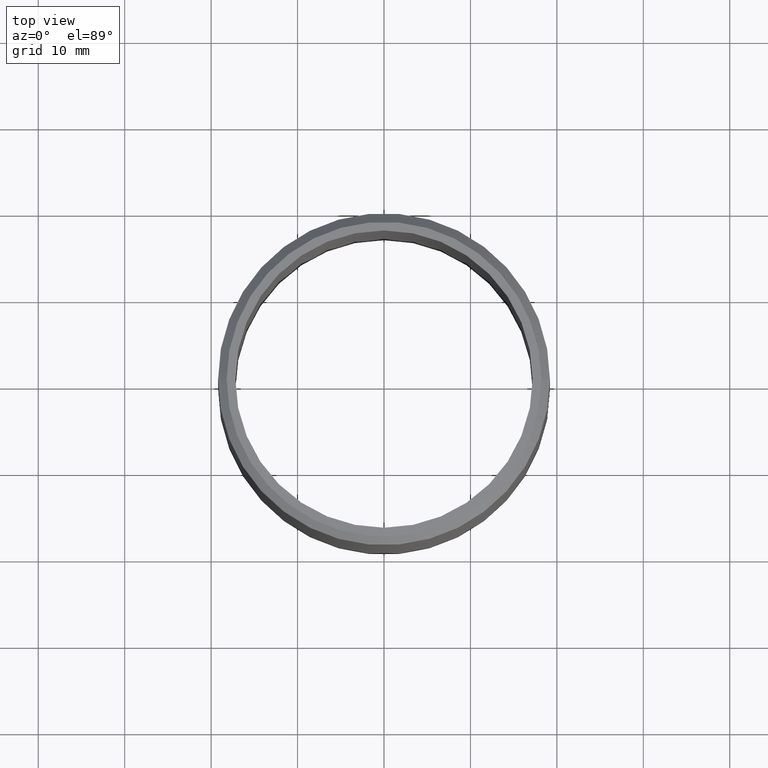
[diagram: clean part render]
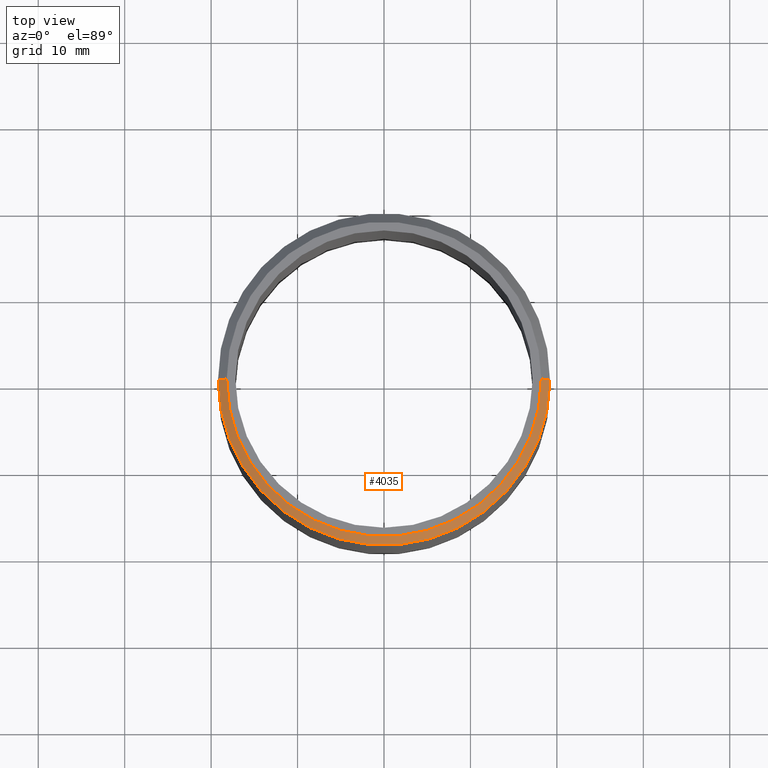
[diagram: same view with one face highlighted and labeled with its STEP entity id]
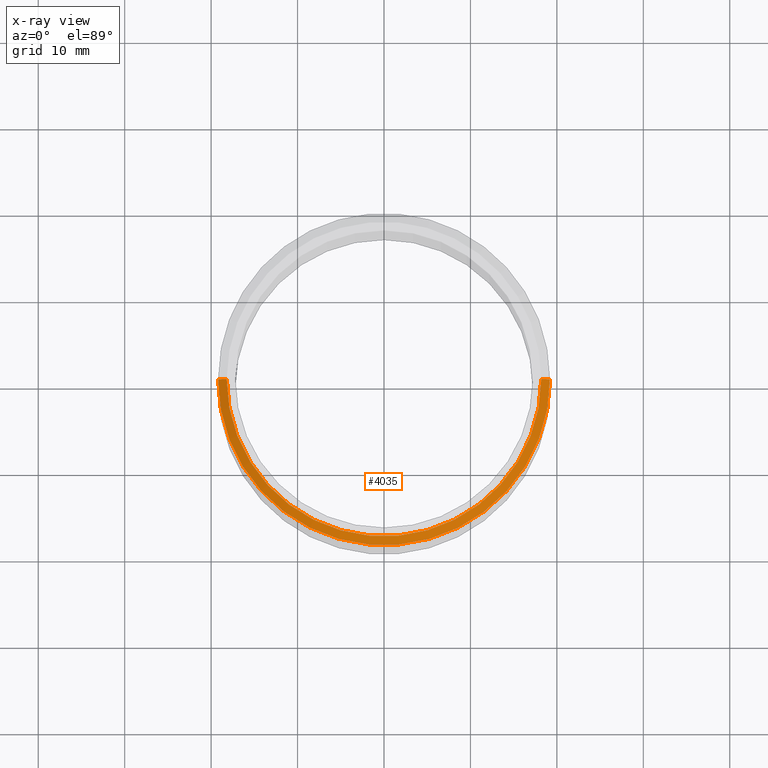
[diagram: x-ray of the same camera — body ghosted, the highlighted face saturated]
A machine part, top view. The second image highlights one B-rep face of the part: STEP entity #4035.
The next image is the same camera in x-ray: the body ghosted, the highlighted face saturated — about 0% of this face is hidden behind the body in this view.
In plain terms, the highlighted conical surface has half-angle 45 deg.
Its self-contained STEP definition (entity closure, byte-faithful):
#94 = CONICAL_SURFACE ( 'NONE', #9240, 18.19999999999999900, 0.7853981633974466100 ) ;
#514 = DIRECTION ( 'NONE',  ( 0.7071067811865463500, 8.659560562354919300E-017, -0.7071067811865487900 ) ) ;
#612 = ORIENTED_EDGE ( 'NONE', *, *, #1508, .T. ) ;
#897 = VERTEX_POINT ( 'NONE', #2108 ) ;
#1001 = VERTEX_POINT ( 'NONE', #2141 ) ;
#1508 = EDGE_CURVE ( 'NONE', #897, #2527, #8253, .T. ) ;
#1954 = CARTESIAN_POINT ( 'NONE',  ( -19.19999999999999900, 0.0000000000000000000, 31.50000000000000000 ) ) ;
#2074 = CIRCLE ( 'NONE', #6709, 18.19999999999999900 ) ;
#2108 = CARTESIAN_POINT ( 'NONE',  ( -18.19999999999999900, 0.0000000000000000000, 32.50000000000000000 ) ) ;
#2120 = CARTESIAN_POINT ( 'NONE',  ( 18.19999999999999900, 2.228857174448182900E-015, 32.50000000000000000 ) ) ;
#2141 = CARTESIAN_POINT ( 'NONE',  ( 18.19999999999999900, 2.290089514405550500E-015, 32.50000000000000000 ) ) ;
#2202 = AXIS2_PLACEMENT_3D ( 'NONE', #10059, #3756, #6412 ) ;
#2239 = VECTOR ( 'NONE', #514, 1000.000000000000000 ) ;
#2527 = VERTEX_POINT ( 'NONE', #1954 ) ;
#2959 = EDGE_CURVE ( 'NONE', #5153, #2527, #10299, .T. ) ;
#3036 = CARTESIAN_POINT ( 'NONE',  ( -18.19999999999999900, 0.0000000000000000000, 32.50000000000000000 ) ) ;
#3756 = DIRECTION ( 'NONE',  ( 0.0000000000000000000, 0.0000000000000000000, -1.000000000000000000 ) ) ;
#4035 = ADVANCED_FACE ( 'NONE', ( #11224 ), #94, .T. ) ;
#4210 = ORIENTED_EDGE ( 'NONE', *, *, #5278, .F. ) ;
#4216 = DIRECTION ( 'NONE',  ( 0.0000000000000000000, 0.0000000000000000000, -1.000000000000000000 ) ) ;
#4633 = DIRECTION ( 'NONE',  ( 0.0000000000000000000, 0.0000000000000000000, 1.000000000000000000 ) ) ;
#5153 = VERTEX_POINT ( 'NONE', #10009 ) ;
#5232 = CARTESIAN_POINT ( 'NONE',  ( 0.0000000000000000000, 0.0000000000000000000, 32.50000000000000000 ) ) ;
#5278 = EDGE_CURVE ( 'NONE', #1001, #5153, #5420, .T. ) ;
#5420 = LINE ( 'NONE', #2120, #2239 ) ;
#5599 = DIRECTION ( 'NONE',  ( 1.000000000000000000, 0.0000000000000000000, 0.0000000000000000000 ) ) ;
#5901 = DIRECTION ( 'NONE',  ( -0.7071067811865463500, 0.0000000000000000000, -0.7071067811865487900 ) ) ;
#6412 = DIRECTION ( 'NONE',  ( 1.000000000000000000, 0.0000000000000000000, 0.0000000000000000000 ) ) ;
#6709 = AXIS2_PLACEMENT_3D ( 'NONE', #10063, #4633, #5599 ) ;
#6763 = ORIENTED_EDGE ( 'NONE', *, *, #2959, .F. ) ;
#7485 = ORIENTED_EDGE ( 'NONE', *, *, #8010, .F. ) ;
#7828 = VECTOR ( 'NONE', #5901, 1000.000000000000000 ) ;
#8010 = EDGE_CURVE ( 'NONE', #897, #1001, #2074, .T. ) ;
#8092 = EDGE_LOOP ( 'NONE', ( #4210, #7485, #612, #6763 ) ) ;
#8253 = LINE ( 'NONE', #3036, #7828 ) ;
#8791 = DIRECTION ( 'NONE',  ( -1.000000000000000000, 0.0000000000000000000, 0.0000000000000000000 ) ) ;
#9240 = AXIS2_PLACEMENT_3D ( 'NONE', #5232, #4216, #8791 ) ;
#10009 = CARTESIAN_POINT ( 'NONE',  ( 19.19999999999999900, 2.351321854362917700E-015, 31.50000000000000000 ) ) ;
#10059 = CARTESIAN_POINT ( 'NONE',  ( 0.0000000000000000000, 0.0000000000000000000, 31.50000000000000000 ) ) ;
#10063 = CARTESIAN_POINT ( 'NONE',  ( 0.0000000000000000000, 0.0000000000000000000, 32.50000000000000000 ) ) ;
#10299 = CIRCLE ( 'NONE', #2202, 19.19999999999999900 ) ;
#11224 = FACE_OUTER_BOUND ( 'NONE', #8092, .T. ) ;